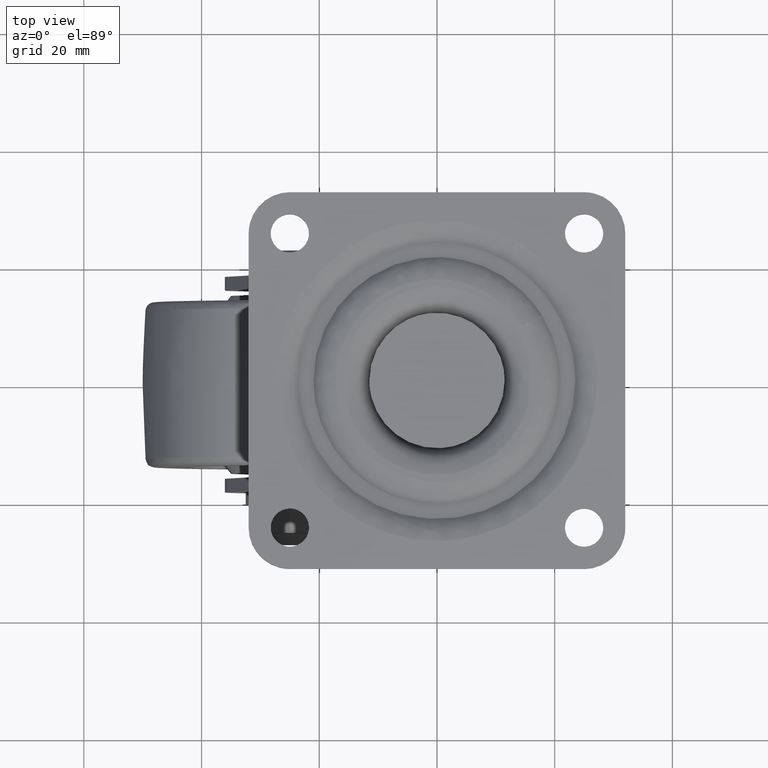
[diagram: clean part render]
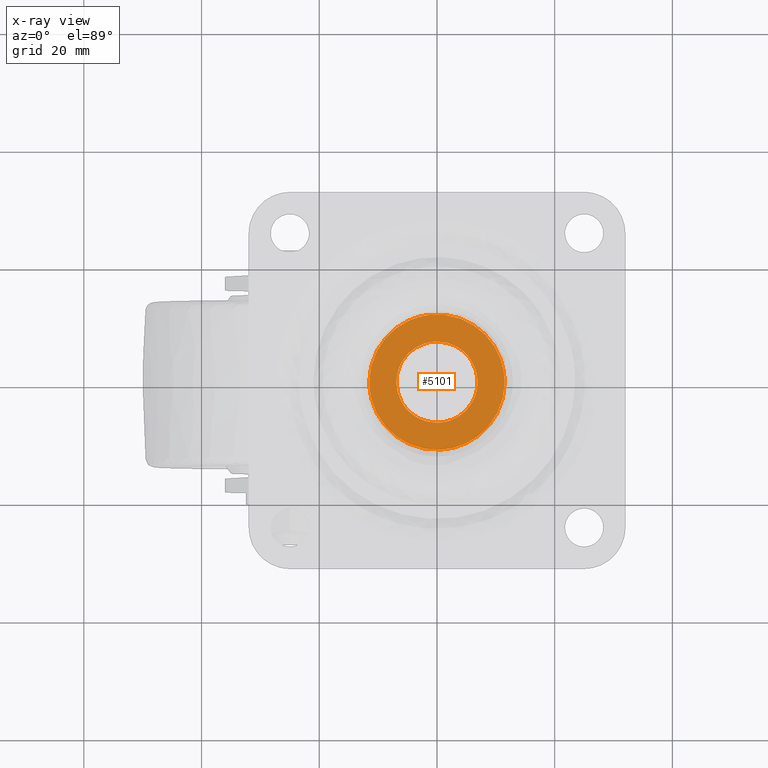
[diagram: x-ray — body ghosted, one internal face saturated and labeled with its STEP entity id]
A machine part, top view, then the same camera in x-ray: the body is ghosted and one INTERNAL B-rep face — a face not visible from any outside direction — is saturated and labeled: STEP entity #5101.
In plain terms, the highlighted face is a freeform B-spline surface patch.
Its self-contained STEP definition (entity closure, byte-faithful):
#4256=CARTESIAN_POINT('',(-1.357378604102716,11.419611347366120,-16.544493000000099));
#4257=VERTEX_POINT('',#4256);
#4258=CARTESIAN_POINT('',(11.500000000000000,0.0,-16.544492999999999));
#4259=VERTEX_POINT('',#4258);
#4260=CARTESIAN_POINT('',(-1.357378604102717,11.419611347366118,-16.544493000000099));
#4261=CARTESIAN_POINT('',(-0.681069748985160,11.500000000000004,-16.544492999999999));
#4262=CARTESIAN_POINT('',(0.0,11.500000000000000,-16.544492999999999));
#4263=CARTESIAN_POINT('',(11.500000000000000,11.500000000000000,-16.544493000000003));
#4264=CARTESIAN_POINT('',(11.500000000000000,0.0,-16.544492999999999));
#4272=(BOUNDED_CURVE()B_SPLINE_CURVE(2,(#4260,#4261,#4262,#4263,#4264),.UNSPECIFIED.,.F.,.U.)B_SPLINE_CURVE_WITH_KNOTS((3,2,3),(0.229562696904306,0.250000000000000,0.500000000000000),.UNSPECIFIED.)CURVE()GEOMETRIC_REPRESENTATION_ITEM()RATIONAL_B_SPLINE_CURVE((0.956027192039272,0.976056210049744,1.0,0.707106781186548,1.0))REPRESENTATION_ITEM(''));
#4273=EDGE_CURVE('',#4257,#4259,#4272,.T.);
#4314=CARTESIAN_POINT('',(0.702037420470957,-11.478551453028590,-16.544493000000099));
#4315=VERTEX_POINT('',#4314);
#4321=CARTESIAN_POINT('',(11.500000000000000,0.0,-16.544492999999999));
#4322=CARTESIAN_POINT('',(11.500000000000000,-10.818139394374835,-16.544492999999999));
#4323=CARTESIAN_POINT('',(0.702037420470957,-11.478551453028597,-16.544493000000106));
#4331=(BOUNDED_CURVE()B_SPLINE_CURVE(2,(#4321,#4322,#4323),.UNSPECIFIED.,.F.,.U.)B_SPLINE_CURVE_WITH_KNOTS((3,3),(0.500000000000000,0.739333274672049),.UNSPECIFIED.)CURVE()GEOMETRIC_REPRESENTATION_ITEM()RATIONAL_B_SPLINE_CURVE((1.0,0.719603627248558,0.976072711271252))REPRESENTATION_ITEM(''));
#4332=EDGE_CURVE('',#4259,#4315,#4331,.T.);
#4355=CARTESIAN_POINT('',(-11.500000000000000,0.0,-16.544492999999999));
#4356=VERTEX_POINT('',#4355);
#4357=CARTESIAN_POINT('',(-11.500000000000000,0.0,-16.544492999999999));
#4358=CARTESIAN_POINT('',(-11.500000000000000,10.214020644372079,-16.544493000000003));
#4359=CARTESIAN_POINT('',(-1.357378604102717,11.419611347366118,-16.544493000000099));
#4367=(BOUNDED_CURVE()B_SPLINE_CURVE(2,(#4357,#4358,#4359),.UNSPECIFIED.,.F.,.U.)B_SPLINE_CURVE_WITH_KNOTS((3,3),(0.0,0.229562696904306),.UNSPECIFIED.)CURVE()GEOMETRIC_REPRESENTATION_ITEM()RATIONAL_B_SPLINE_CURVE((1.0,0.731050571136804,0.956027192039272))REPRESENTATION_ITEM(''));
#4368=EDGE_CURVE('',#4356,#4257,#4367,.T.);
#4370=CARTESIAN_POINT('',(0.702037420470957,-11.478551453028597,-16.544493000000106));
#4371=CARTESIAN_POINT('',(0.351346356706857,-11.500000000000004,-16.544493000000003));
#4372=CARTESIAN_POINT('',(0.0,-11.500000000000000,-16.544492999999999));
#4373=CARTESIAN_POINT('',(-11.500000000000000,-11.500000000000000,-16.544493000000003));
#4374=CARTESIAN_POINT('',(-11.500000000000000,0.0,-16.544492999999999));
#4382=(BOUNDED_CURVE()B_SPLINE_CURVE(2,(#4370,#4371,#4372,#4373,#4374),.UNSPECIFIED.,.F.,.U.)B_SPLINE_CURVE_WITH_KNOTS((3,2,3),(0.739333274672049,0.750000000000000,1.0),.UNSPECIFIED.)CURVE()GEOMETRIC_REPRESENTATION_ITEM()RATIONAL_B_SPLINE_CURVE((0.976072711271252,0.987503153937989,1.0,0.707106781186548,1.0))REPRESENTATION_ITEM(''));
#4383=EDGE_CURVE('',#4315,#4356,#4382,.T.);
#4427=CARTESIAN_POINT('',(-5.975575286112370,-3.449999999999900,-16.544492999999999));
#4428=VERTEX_POINT('',#4427);
#4551=CARTESIAN_POINT('',(5.975575286112920,3.450000000000175,-16.544492999999999));
#4552=VERTEX_POINT('',#4551);
#4671=CARTESIAN_POINT('',(5.975575286112590,-3.449999999999955,-16.544492999999999));
#4672=VERTEX_POINT('',#4671);
#4787=CARTESIAN_POINT('',(-5.975575286112590,3.450000000000000,-16.544492999999999));
#4788=VERTEX_POINT('',#4787);
#4904=CARTESIAN_POINT('',(0.0,-6.900000000000000,-16.544492999999999));
#4905=VERTEX_POINT('',#4904);
#5008=CARTESIAN_POINT('',(12.648849955421539,-12.648570271550780,-16.544492999999999));
#5009=CARTESIAN_POINT('',(-12.648850572329611,-12.648570271550780,-16.544492999999999));
#5010=CARTESIAN_POINT('',(12.648849955421539,12.648640804707179,-16.544492999999999));
#5011=CARTESIAN_POINT('',(-12.648850572329611,12.648640804707179,-16.544492999999999));
#5012=B_SPLINE_SURFACE_WITH_KNOTS('',1,1,((#5008,#5010),(#5009,#5011)),.UNSPECIFIED.,.F.,.F.,.U.,(2,2),(2,2),(0.0,25.297700527751150),(0.0,25.297211076257959),.UNSPECIFIED.);
#5013=ORIENTED_EDGE('',*,*,#4368,.T.);
#5014=ORIENTED_EDGE('',*,*,#4273,.T.);
#5015=ORIENTED_EDGE('',*,*,#4332,.T.);
#5016=ORIENTED_EDGE('',*,*,#4383,.T.);
#5017=EDGE_LOOP('',(#5013,#5014,#5015,#5016));
#5018=FACE_OUTER_BOUND('',#5017,.T.);
#5019=CARTESIAN_POINT('',(0.0,6.900000000000000,-16.544492999999999));
#5020=VERTEX_POINT('',#5019);
#5021=CARTESIAN_POINT('',(0.0,6.900000000000000,-16.544492999999999));
#5022=CARTESIAN_POINT('',(3.983716857408413,6.900000000000000,-16.544492999999999));
#5023=CARTESIAN_POINT('',(5.975575286112920,3.450000000000175,-16.544492999999999));
#5031=(BOUNDED_CURVE()B_SPLINE_CURVE(2,(#5021,#5022,#5023),.UNSPECIFIED.,.F.,.U.)CURVE()GEOMETRIC_REPRESENTATION_ITEM()QUASI_UNIFORM_CURVE()RATIONAL_B_SPLINE_CURVE((1.0,0.866025403784439,1.0))REPRESENTATION_ITEM(''));
#5032=EDGE_CURVE('',#5020,#4552,#5031,.T.);
#5033=ORIENTED_EDGE('',*,*,#5032,.F.);
#5034=CARTESIAN_POINT('',(-5.975575286112617,3.450000000000016,-16.544492999999999));
#5035=CARTESIAN_POINT('',(-3.983716857408405,6.899999999999999,-16.544492999999999));
#5036=CARTESIAN_POINT('',(0.0,6.900000000000000,-16.544492999999999));
#5044=(BOUNDED_CURVE()B_SPLINE_CURVE(2,(#5034,#5035,#5036),.UNSPECIFIED.,.F.,.U.)CURVE()GEOMETRIC_REPRESENTATION_ITEM()QUASI_UNIFORM_CURVE()RATIONAL_B_SPLINE_CURVE((1.0,0.866025403784439,1.0))REPRESENTATION_ITEM(''));
#5045=EDGE_CURVE('',#4788,#5020,#5044,.T.);
#5046=ORIENTED_EDGE('',*,*,#5045,.F.);
#5047=CARTESIAN_POINT('',(-5.975575286112370,-3.449999999999900,-16.544492999999999));
#5048=CARTESIAN_POINT('',(-7.967433714816859,-1.691355E-014,-16.544493000000003));
#5049=CARTESIAN_POINT('',(-5.975575286112617,3.450000000000016,-16.544492999999999));
#5057=(BOUNDED_CURVE()B_SPLINE_CURVE(2,(#5047,#5048,#5049),.UNSPECIFIED.,.F.,.U.)CURVE()GEOMETRIC_REPRESENTATION_ITEM()QUASI_UNIFORM_CURVE()RATIONAL_B_SPLINE_CURVE((1.0,0.866025403784436,1.0))REPRESENTATION_ITEM(''));
#5058=EDGE_CURVE('',#4428,#4788,#5057,.T.);
#5059=ORIENTED_EDGE('',*,*,#5058,.F.);
#5060=CARTESIAN_POINT('',(0.0,-6.900000000000000,-16.544492999999999));
#5061=CARTESIAN_POINT('',(-3.983716857408387,-6.900000000000001,-16.544493000000003));
#5062=CARTESIAN_POINT('',(-5.975575286112370,-3.449999999999900,-16.544492999999999));
#5070=(BOUNDED_CURVE()B_SPLINE_CURVE(2,(#5060,#5061,#5062),.UNSPECIFIED.,.F.,.U.)CURVE()GEOMETRIC_REPRESENTATION_ITEM()QUASI_UNIFORM_CURVE()RATIONAL_B_SPLINE_CURVE((1.0,0.866025403784440,1.0))REPRESENTATION_ITEM(''));
#5071=EDGE_CURVE('',#4905,#4428,#5070,.T.);
#5072=ORIENTED_EDGE('',*,*,#5071,.F.);
#5073=CARTESIAN_POINT('',(5.975575286112639,-3.449999999999980,-16.544492999999999));
#5074=CARTESIAN_POINT('',(3.983716857408433,-6.900000000000000,-16.544493000000003));
#5075=CARTESIAN_POINT('',(0.0,-6.900000000000000,-16.544492999999999));
#5083=(BOUNDED_CURVE()B_SPLINE_CURVE(2,(#5073,#5074,#5075),.UNSPECIFIED.,.F.,.U.)CURVE()GEOMETRIC_REPRESENTATION_ITEM()QUASI_UNIFORM_CURVE()RATIONAL_B_SPLINE_CURVE((1.0,0.866025403784438,1.0))REPRESENTATION_ITEM(''));
#5084=EDGE_CURVE('',#4672,#4905,#5083,.T.);
#5085=ORIENTED_EDGE('',*,*,#5084,.F.);
#5086=CARTESIAN_POINT('',(5.975575286112920,3.450000000000175,-16.544492999999999));
#5087=CARTESIAN_POINT('',(7.967433714816830,1.691355E-014,-16.544493000000003));
#5088=CARTESIAN_POINT('',(5.975575286112639,-3.449999999999980,-16.544492999999999));
#5096=(BOUNDED_CURVE()B_SPLINE_CURVE(2,(#5086,#5087,#5088),.UNSPECIFIED.,.F.,.U.)CURVE()GEOMETRIC_REPRESENTATION_ITEM()QUASI_UNIFORM_CURVE()RATIONAL_B_SPLINE_CURVE((1.0,0.866025403784439,1.0))REPRESENTATION_ITEM(''));
#5097=EDGE_CURVE('',#4552,#4672,#5096,.T.);
#5098=ORIENTED_EDGE('',*,*,#5097,.F.);
#5099=EDGE_LOOP('',(#5033,#5046,#5059,#5072,#5085,#5098));
#5100=FACE_BOUND('',#5099,.T.);
#5101=ADVANCED_FACE('',(#5018,#5100),#5012,.T.);